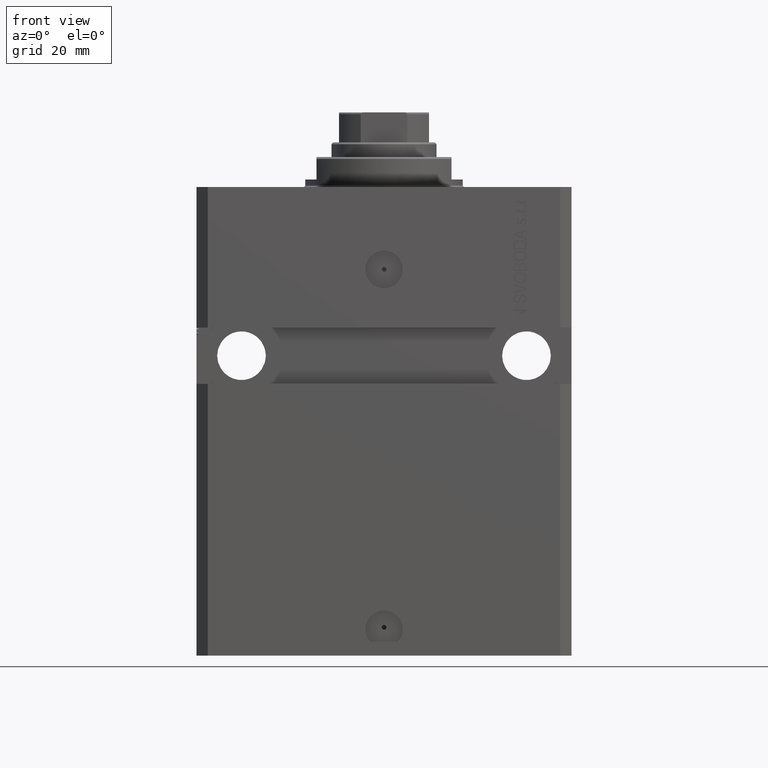
[diagram: clean part render]
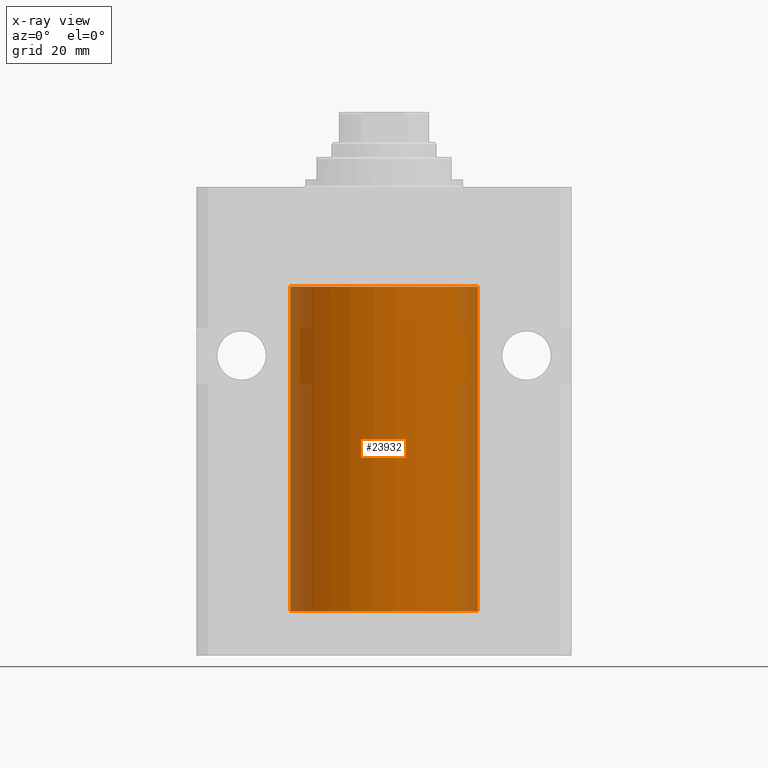
[diagram: x-ray — body ghosted, one internal face saturated and labeled with its STEP entity id]
A machine part, front view, then the same camera in x-ray: the body is ghosted and one INTERNAL B-rep face — a face not visible from any outside direction — is saturated and labeled: STEP entity #23932.
In plain terms, the highlighted cylindrical surface (partial cylindrical patch) has radius 25 mm, axis along (0, 0, 1).
Its self-contained STEP definition (entity closure, byte-faithful):
#1020 = AXIS2_PLACEMENT_3D ( 'NONE', #1366, #31490, #16055 ) ;
#1026 = CARTESIAN_POINT ( 'NONE',  ( 24.99813006673834792, -0.3267849812101329965, -111.0571664564703838 ) ) ;
#1366 = CARTESIAN_POINT ( 'NONE',  ( 0.000000000000000000, 0.000000000000000000, -113.0999999999999943 ) ) ;
#2638 = B_SPLINE_CURVE_WITH_KNOTS ( 'NONE', 3,
 ( #37046, #15091, #4008, #18710, #23277, #30510 ),
 .UNSPECIFIED., .F., .F.,
 ( 4, 2, 4 ),
 ( 0.001954111766881289937, 0.002442787801636856371, 0.002931463836392422806 ),
 .UNSPECIFIED. ) ;
#3237 = FACE_OUTER_BOUND ( 'NONE', #22361, .T. ) ;
#3249 = VERTEX_POINT ( 'NONE', #13900 ) ;
#3390 = CIRCLE ( 'NONE', #41864, 25.00000000000000000 ) ;
#3832 = LINE ( 'NONE', #15145, #45815 ) ;
#4008 = CARTESIAN_POINT ( 'NONE',  ( 24.99813432839964733, -0.3264764365875494345, -109.9426599702415359 ) ) ;
#7088 = DIRECTION ( 'NONE',  ( 1.000000000000000000, 0.000000000000000000, 0.000000000000000000 ) ) ;
#9538 = VERTEX_POINT ( 'NONE', #44696 ) ;
#9845 = ORIENTED_EDGE ( 'NONE', *, *, #41879, .F. ) ;
#10227 = ORIENTED_EDGE ( 'NONE', *, *, #18677, .T. ) ;
#11331 = CARTESIAN_POINT ( 'NONE',  ( 25.00000000000000000, 0.000000000000000000, -26.60000000000000142 ) ) ;
#11440 = VERTEX_POINT ( 'NONE', #42488 ) ;
#11545 = DIRECTION ( 'NONE',  ( -0.000000000000000000, -0.000000000000000000, 1.000000000000000000 ) ) ;
#11551 = CARTESIAN_POINT ( 'NONE',  ( -25.00000000000000000, 3.061616997868383043E-15, -113.0999999999999943 ) ) ;
#12073 = AXIS2_PLACEMENT_3D ( 'NONE', #18635, #33345, #7088 ) ;
#13900 = CARTESIAN_POINT ( 'NONE',  ( 25.00000000000000000, -2.424731304940744339E-15, -111.1250000000000000 ) ) ;
#15091 = CARTESIAN_POINT ( 'NONE',  ( 25.00000000000000000, -0.1632166659117597896, -109.8749999999998721 ) ) ;
#15145 = CARTESIAN_POINT ( 'NONE',  ( 25.00000000000000000, 0.000000000000000000, -113.0999999999999943 ) ) ;
#16055 = DIRECTION ( 'NONE',  ( 1.000000000000000000, 0.000000000000000000, 0.000000000000000000 ) ) ;
#17759 = ORIENTED_EDGE ( 'NONE', *, *, #37205, .F. ) ;
#17836 = EDGE_CURVE ( 'NONE', #24082, #3249, #3832, .T. ) ;
#18079 = DIRECTION ( 'NONE',  ( -0.000000000000000000, -0.000000000000000000, 1.000000000000000000 ) ) ;
#18635 = CARTESIAN_POINT ( 'NONE',  ( 0.000000000000000000, 0.000000000000000000, -113.0999999999999943 ) ) ;
#18677 = EDGE_CURVE ( 'NONE', #46660, #9538, #40973, .T. ) ;
#18710 = CARTESIAN_POINT ( 'NONE',  ( 24.99405709967502887, -0.5571503051635591230, -110.1731998930932264 ) ) ;
#19623 = VECTOR ( 'NONE', #25772, 1000.000000000000000 ) ;
#20217 = ORIENTED_EDGE ( 'NONE', *, *, #17836, .F. ) ;
#22227 = CARTESIAN_POINT ( 'NONE',  ( 24.99218627891525202, -0.6250000000000475175, -110.6647828774370765 ) ) ;
#22361 = EDGE_LOOP ( 'NONE', ( #9845, #10227, #28544, #17759, #42166, #23386, #20217 ) ) ;
#22709 = CARTESIAN_POINT ( 'NONE',  ( 25.00000000000000000, -0.1650629246255838900, -111.1250000000000000 ) ) ;
#22942 = CARTESIAN_POINT ( 'NONE',  ( 25.00000000000000000, -2.424731304940744339E-15, -111.1250000000000000 ) ) ;
#23277 = CARTESIAN_POINT ( 'NONE',  ( 24.99218627891525912, -0.6250000000000401901, -110.3350425307653211 ) ) ;
#23386 = ORIENTED_EDGE ( 'NONE', *, *, #28341, .T. ) ;
#23932 = ADVANCED_FACE ( 'NONE', ( #3237 ), #26090, .F. ) ;
#24082 = VERTEX_POINT ( 'NONE', #46120 ) ;
#25772 = DIRECTION ( 'NONE',  ( -0.000000000000000000, -0.000000000000000000, 1.000000000000000000 ) ) ;
#25801 = DIRECTION ( 'NONE',  ( 0.000000000000000000, 0.000000000000000000, 1.000000000000000000 ) ) ;
#26090 = CYLINDRICAL_SURFACE ( 'NONE', #12073, 25.00000000000000000 ) ;
#28341 = EDGE_CURVE ( 'NONE', #30411, #3249, #35562, .T. ) ;
#28544 = ORIENTED_EDGE ( 'NONE', *, *, #46722, .T. ) ;
#29712 = CARTESIAN_POINT ( 'NONE',  ( 24.99405221541606892, -0.5573590499560032718, -110.8264563884999632 ) ) ;
#30411 = VERTEX_POINT ( 'NONE', #34068 ) ;
#30510 = CARTESIAN_POINT ( 'NONE',  ( 24.99218627891525912, -0.6250000000000438538, -110.5000000000000000 ) ) ;
#31013 = CIRCLE ( 'NONE', #1020, 25.00000000000000000 ) ;
#31490 = DIRECTION ( 'NONE',  ( 0.000000000000000000, 0.000000000000000000, 1.000000000000000000 ) ) ;
#33345 = DIRECTION ( 'NONE',  ( -0.000000000000000000, -0.000000000000000000, 1.000000000000000000 ) ) ;
#34068 = CARTESIAN_POINT ( 'NONE',  ( 24.99218627891525912, -0.6250000000000438538, -110.5000000000000000 ) ) ;
#35562 = B_SPLINE_CURVE_WITH_KNOTS ( 'NONE', 3,
 ( #40580, #22227, #29712, #1026, #22709, #22942 ),
 .UNSPECIFIED., .F., .F.,
 ( 4, 2, 4 ),
 ( 0.002931463836392422806, 0.003419622654026862815, 0.003907781471661302825 ),
 .UNSPECIFIED. ) ;
#37046 = CARTESIAN_POINT ( 'NONE',  ( 25.00000000000008171, 3.486950403907965962E-13, -109.8749999999967315 ) ) ;
#37205 = EDGE_CURVE ( 'NONE', #11440, #45906, #40261, .T. ) ;
#37629 = EDGE_CURVE ( 'NONE', #11440, #30411, #2638, .T. ) ;
#39367 = VECTOR ( 'NONE', #11545, 1000.000000000000000 ) ;
#40261 = LINE ( 'NONE', #44574, #39367 ) ;
#40529 = DIRECTION ( 'NONE',  ( 1.000000000000000000, 0.000000000000000000, 0.000000000000000000 ) ) ;
#40580 = CARTESIAN_POINT ( 'NONE',  ( 24.99218627891525912, -0.6250000000000438538, -110.5000000000000000 ) ) ;
#40973 = LINE ( 'NONE', #11551, #19623 ) ;
#41864 = AXIS2_PLACEMENT_3D ( 'NONE', #46109, #25801, #40529 ) ;
#41879 = EDGE_CURVE ( 'NONE', #46660, #24082, #31013, .T. ) ;
#42166 = ORIENTED_EDGE ( 'NONE', *, *, #37629, .T. ) ;
#42488 = CARTESIAN_POINT ( 'NONE',  ( 25.00000000000008171, 3.486950403907965962E-13, -109.8749999999967315 ) ) ;
#42735 = CARTESIAN_POINT ( 'NONE',  ( -25.00000000000000000, 3.061616997868383043E-15, -113.0999999999999943 ) ) ;
#44574 = CARTESIAN_POINT ( 'NONE',  ( 25.00000000000000000, 0.000000000000000000, -113.0999999999999943 ) ) ;
#44696 = CARTESIAN_POINT ( 'NONE',  ( -25.00000000000000000, 3.061616997868383043E-15, -26.60000000000000142 ) ) ;
#45815 = VECTOR ( 'NONE', #18079, 1000.000000000000000 ) ;
#45906 = VERTEX_POINT ( 'NONE', #11331 ) ;
#46109 = CARTESIAN_POINT ( 'NONE',  ( 0.000000000000000000, 0.000000000000000000, -26.60000000000000142 ) ) ;
#46120 = CARTESIAN_POINT ( 'NONE',  ( 25.00000000000000000, 0.000000000000000000, -113.0999999999999943 ) ) ;
#46660 = VERTEX_POINT ( 'NONE', #42735 ) ;
#46722 = EDGE_CURVE ( 'NONE', #9538, #45906, #3390, .T. ) ;